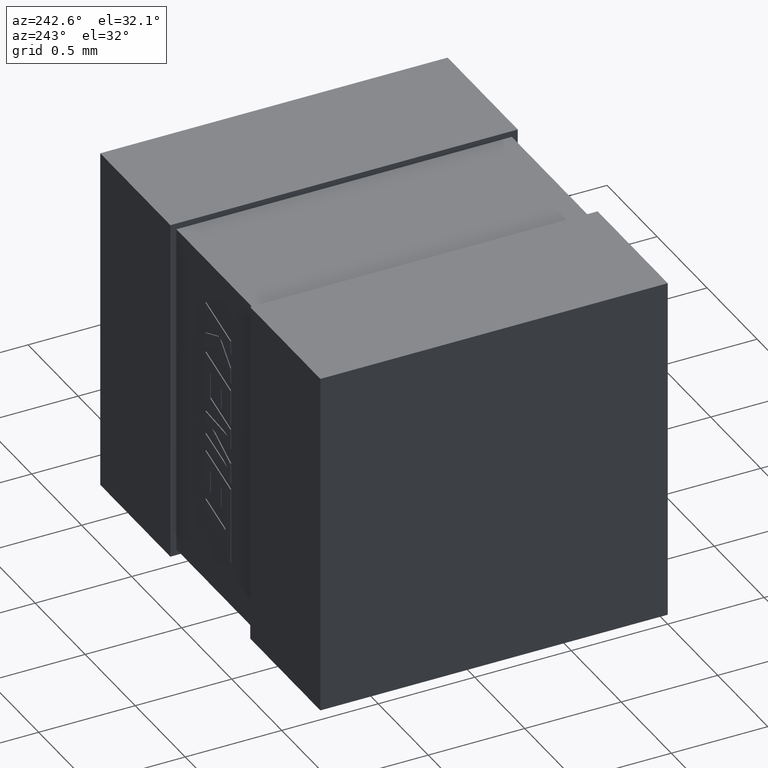
[diagram: clean part render]
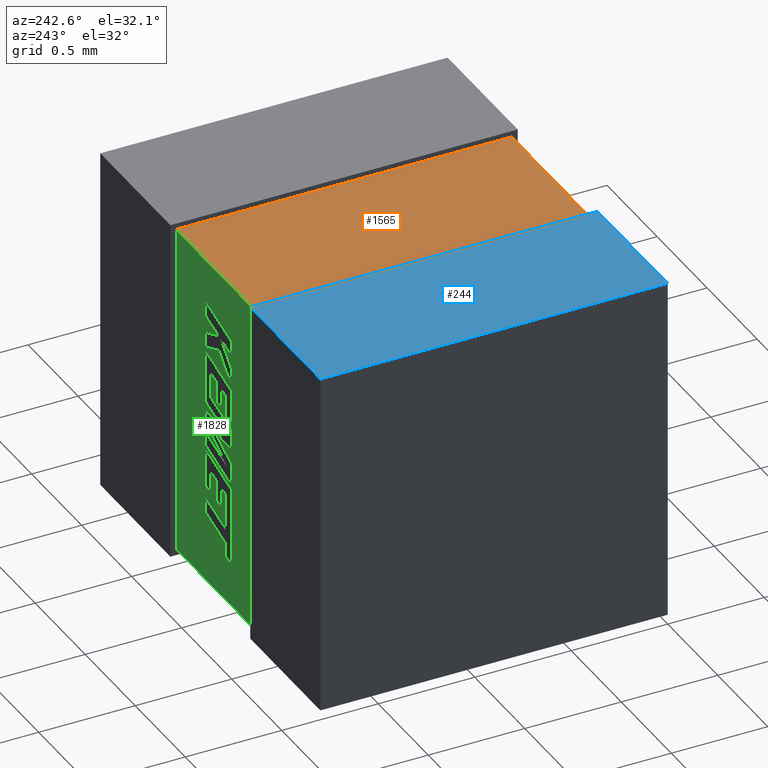
[diagram: same view with three faces highlighted in distinct colors, each labeled with its STEP entity id]
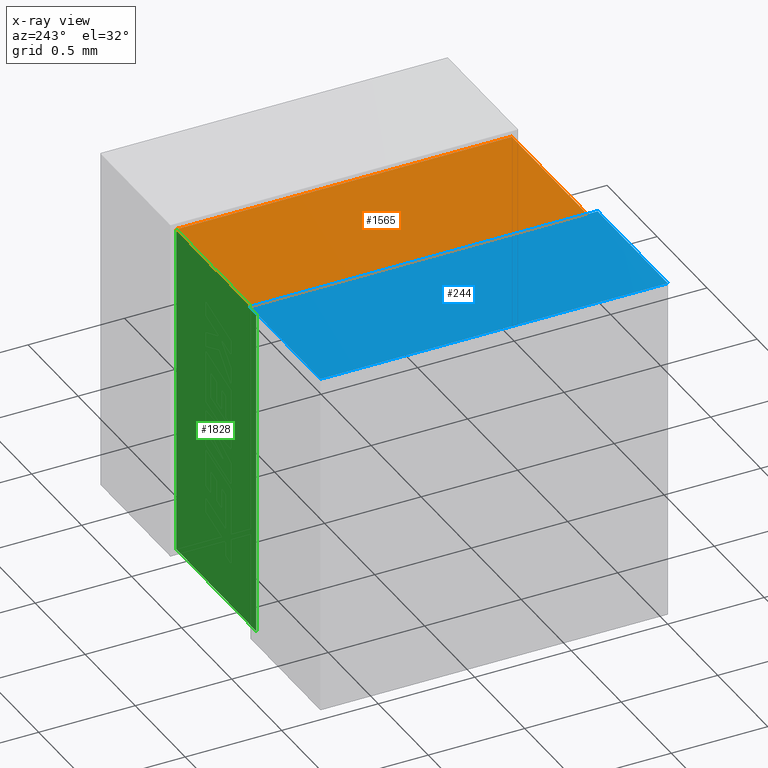
[diagram: x-ray of the same camera — body ghosted, the three highlighted faces saturated]
A machine part, auxiliary view with three faces highlighted in distinct colors.
The next image is the same camera in x-ray (body ghosted, the three faces saturated) — at least one of them is partly hidden behind the body in this view.
Their STEP definitions:

[orange] entity #1565 — the highlighted planar face has unit normal (-0, 0, 1).
#67 = VERTEX_POINT ( 'NONE', #342 ) ;
#77 = LINE ( 'NONE', #1524, #1134 ) ;
#177 = DIRECTION ( 'NONE',  ( 0.0000000000000000000, 1.000000000000000000, 0.0000000000000000000 ) ) ;
#220 = DIRECTION ( 'NONE',  ( -0.0000000000000000000, 0.0000000000000000000, 1.000000000000000000 ) ) ;
#322 = EDGE_CURVE ( 'NONE', #2169, #1281, #1239, .T. ) ;
#342 = CARTESIAN_POINT ( 'NONE',  ( 1.499000000000000300, 0.03103379999999959400, -0.03103380000000002800 ) ) ;
#543 = LINE ( 'NONE', #1466, #2233 ) ;
#584 = CARTESIAN_POINT ( 'NONE',  ( 0.7010000000000062800, 1.768966199999999500, -0.03103379999999982300 ) ) ;
#654 = DIRECTION ( 'NONE',  ( 1.000000000000000000, -5.421010862427523200E-016, 0.0000000000000000000 ) ) ;
#950 = VERTEX_POINT ( 'NONE', #2004 ) ;
#987 = PLANE ( 'NONE',  #1063 ) ;
#1063 = AXIS2_PLACEMENT_3D ( 'NONE', #2134, #220, #1749 ) ;
#1090 = VECTOR ( 'NONE', #1995, 1000.000000000000000 ) ;
#1134 = VECTOR ( 'NONE', #177, 1000.000000000000000 ) ;
#1239 = LINE ( 'NONE', #1976, #1090 ) ;
#1243 = CARTESIAN_POINT ( 'NONE',  ( 0.6999999999999999600, 0.03103380000000002800, -0.03103380000000002800 ) ) ;
#1274 = DIRECTION ( 'NONE',  ( 0.0000000000000000000, -1.000000000000000000, -1.169711246197102500E-016 ) ) ;
#1281 = VERTEX_POINT ( 'NONE', #1484 ) ;
#1307 = ORIENTED_EDGE ( 'NONE', *, *, #1984, .T. ) ;
#1368 = EDGE_LOOP ( 'NONE', ( #1505, #2200, #2322, #1307 ) ) ;
#1466 = CARTESIAN_POINT ( 'NONE',  ( 0.7010000000000062800, 1.768966199999999500, -0.03103379999999982300 ) ) ;
#1484 = CARTESIAN_POINT ( 'NONE',  ( 1.499000000000000100, 1.768966199999999500, -0.03103380000000002800 ) ) ;
#1505 = ORIENTED_EDGE ( 'NONE', *, *, #2193, .T. ) ;
#1524 = CARTESIAN_POINT ( 'NONE',  ( 1.499000000000000100, 0.03103379999999959400, -0.03103380000000002800 ) ) ;
#1565 = ADVANCED_FACE ( 'NONE', ( #2330 ), #987, .T. ) ;
#1569 = LINE ( 'NONE', #1243, #2477 ) ;
#1749 = DIRECTION ( 'NONE',  ( 1.000000000000000000, 0.0000000000000000000, 0.0000000000000000000 ) ) ;
#1976 = CARTESIAN_POINT ( 'NONE',  ( 0.6999999999999999600, 1.768966199999999500, -0.03103380000000002800 ) ) ;
#1984 = EDGE_CURVE ( 'NONE', #2169, #950, #543, .T. ) ;
#1995 = DIRECTION ( 'NONE',  ( 1.000000000000000000, 0.0000000000000000000, 0.0000000000000000000 ) ) ;
#2004 = CARTESIAN_POINT ( 'NONE',  ( 0.7010000000000062800, 0.03103379999999959400, -0.03103380000000002800 ) ) ;
#2134 = CARTESIAN_POINT ( 'NONE',  ( 0.6999999999999999600, 0.0000000000000000000, -0.03103380000000002800 ) ) ;
#2169 = VERTEX_POINT ( 'NONE', #584 ) ;
#2193 = EDGE_CURVE ( 'NONE', #950, #67, #1569, .T. ) ;
#2200 = ORIENTED_EDGE ( 'NONE', *, *, #2504, .T. ) ;
#2233 = VECTOR ( 'NONE', #1274, 1000.000000000000000 ) ;
#2322 = ORIENTED_EDGE ( 'NONE', *, *, #322, .F. ) ;
#2330 = FACE_OUTER_BOUND ( 'NONE', #1368, .T. ) ;
#2477 = VECTOR ( 'NONE', #654, 1000.000000000000000 ) ;
#2504 = EDGE_CURVE ( 'NONE', #67, #1281, #77, .T. ) ;

[blue] entity #244 — the highlighted planar face has unit normal (0, 0, -1).
#22 = VERTEX_POINT ( 'NONE', #736 ) ;
#83 = ORIENTED_EDGE ( 'NONE', *, *, #826, .F. ) ;
#103 = DIRECTION ( 'NONE',  ( -0.0000000000000000000, -1.000000000000000000, -0.0000000000000000000 ) ) ;
#119 = VECTOR ( 'NONE', #2199, 1000.000000000000000 ) ;
#169 = VERTEX_POINT ( 'NONE', #1744 ) ;
#230 = ORIENTED_EDGE ( 'NONE', *, *, #999, .T. ) ;
#241 = VECTOR ( 'NONE', #103, 1000.000000000000000 ) ;
#244 = ADVANCED_FACE ( 'NONE', ( #340 ), #2371, .F. ) ;
#340 = FACE_OUTER_BOUND ( 'NONE', #1252, .T. ) ;
#736 = CARTESIAN_POINT ( 'NONE',  ( 0.0000000000000000000, 0.0000000000000000000, 0.0000000000000000000 ) ) ;
#751 = VERTEX_POINT ( 'NONE', #1577 ) ;
#804 = DIRECTION ( 'NONE',  ( 0.0000000000000000000, 0.0000000000000000000, -1.000000000000000000 ) ) ;
#812 = CARTESIAN_POINT ( 'NONE',  ( 0.0000000000000000000, 1.800000000000000000, 0.0000000000000000000 ) ) ;
#823 = CARTESIAN_POINT ( 'NONE',  ( 0.7010000000000062800, 1.799999999999999800, 4.061078227704261800E-017 ) ) ;
#826 = EDGE_CURVE ( 'NONE', #751, #1927, #2182, .T. ) ;
#876 = CARTESIAN_POINT ( 'NONE',  ( 0.7010000000000062800, 1.799999999999999800, 4.061078227704261800E-017 ) ) ;
#986 = VECTOR ( 'NONE', #1440, 1000.000000000000000 ) ;
#999 = EDGE_CURVE ( 'NONE', #751, #22, #1325, .T. ) ;
#1036 = CARTESIAN_POINT ( 'NONE',  ( 0.0000000000000000000, 0.0000000000000000000, 0.0000000000000000000 ) ) ;
#1229 = DIRECTION ( 'NONE',  ( 1.000000000000000000, 0.0000000000000000000, 0.0000000000000000000 ) ) ;
#1252 = EDGE_LOOP ( 'NONE', ( #2492, #1375, #83, #230 ) ) ;
#1325 = LINE ( 'NONE', #1427, #241 ) ;
#1370 = DIRECTION ( 'NONE',  ( -1.000000000000000000, 0.0000000000000000000, -0.0000000000000000000 ) ) ;
#1375 = ORIENTED_EDGE ( 'NONE', *, *, #1529, .F. ) ;
#1399 = EDGE_CURVE ( 'NONE', #22, #169, #1878, .T. ) ;
#1427 = CARTESIAN_POINT ( 'NONE',  ( 0.0000000000000000000, 1.800000000000000000, 0.0000000000000000000 ) ) ;
#1440 = DIRECTION ( 'NONE',  ( 0.0000000000000000000, -1.000000000000000000, -2.256154570946815900E-017 ) ) ;
#1529 = EDGE_CURVE ( 'NONE', #1927, #169, #2269, .T. ) ;
#1573 = VECTOR ( 'NONE', #1229, 1000.000000000000000 ) ;
#1577 = CARTESIAN_POINT ( 'NONE',  ( 0.0000000000000000000, 1.800000000000000000, 0.0000000000000000000 ) ) ;
#1744 = CARTESIAN_POINT ( 'NONE',  ( 0.7010000000000062800, 2.445532035199876600E-015, 0.0000000000000000000 ) ) ;
#1878 = LINE ( 'NONE', #1036, #1573 ) ;
#1920 = AXIS2_PLACEMENT_3D ( 'NONE', #812, #804, #1370 ) ;
#1927 = VERTEX_POINT ( 'NONE', #823 ) ;
#2182 = LINE ( 'NONE', #2404, #119 ) ;
#2199 = DIRECTION ( 'NONE',  ( 1.000000000000000000, 0.0000000000000000000, 0.0000000000000000000 ) ) ;
#2269 = LINE ( 'NONE', #876, #986 ) ;
#2371 = PLANE ( 'NONE',  #1920 ) ;
#2404 = CARTESIAN_POINT ( 'NONE',  ( 0.0000000000000000000, 1.800000000000000000, 0.0000000000000000000 ) ) ;
#2492 = ORIENTED_EDGE ( 'NONE', *, *, #1399, .T. ) ;

[green] entity #1828 — the highlighted planar face has unit normal (0, -1, 0).
#30 = CARTESIAN_POINT ( 'NONE',  ( 0.7010000000000062800, 1.768966199999999700, -1.768966199999999500 ) ) ;
#34 = DIRECTION ( 'NONE',  ( 5.421010862427523200E-016, -1.000000000000000000, 0.0000000000000000000 ) ) ;
#36 = EDGE_CURVE ( 'NONE', #1281, #881, #2189, .T. ) ;
#137 = LINE ( 'NONE', #2136, #1194 ) ;
#210 = DIRECTION ( 'NONE',  ( -0.0000000000000000000, -1.247691995943576200E-016, 1.000000000000000000 ) ) ;
#293 = FACE_OUTER_BOUND ( 'NONE', #2293, .T. ) ;
#322 = EDGE_CURVE ( 'NONE', #2169, #1281, #1239, .T. ) ;
#345 = ORIENTED_EDGE ( 'NONE', *, *, #768, .T. ) ;
#522 = DIRECTION ( 'NONE',  ( -0.0000000000000000000, -0.0000000000000000000, -1.000000000000000000 ) ) ;
#584 = CARTESIAN_POINT ( 'NONE',  ( 0.7010000000000062800, 1.768966199999999500, -0.03103379999999982300 ) ) ;
#617 = ORIENTED_EDGE ( 'NONE', *, *, #36, .T. ) ;
#748 = PLANE ( 'NONE',  #1839 ) ;
#749 = VERTEX_POINT ( 'NONE', #30 ) ;
#768 = EDGE_CURVE ( 'NONE', #749, #2169, #1266, .T. ) ;
#881 = VERTEX_POINT ( 'NONE', #1060 ) ;
#1001 = CARTESIAN_POINT ( 'NONE',  ( 0.7010000000000062800, 1.768966199999999500, -0.03103379999999982300 ) ) ;
#1060 = CARTESIAN_POINT ( 'NONE',  ( 1.499000000000000100, 1.768966199999999500, -1.768966199999999900 ) ) ;
#1090 = VECTOR ( 'NONE', #1995, 1000.000000000000000 ) ;
#1194 = VECTOR ( 'NONE', #1330, 1000.000000000000000 ) ;
#1239 = LINE ( 'NONE', #1976, #1090 ) ;
#1266 = LINE ( 'NONE', #1001, #2002 ) ;
#1281 = VERTEX_POINT ( 'NONE', #1484 ) ;
#1330 = DIRECTION ( 'NONE',  ( 1.000000000000000000, 0.0000000000000000000, 0.0000000000000000000 ) ) ;
#1484 = CARTESIAN_POINT ( 'NONE',  ( 1.499000000000000100, 1.768966199999999500, -0.03103380000000002800 ) ) ;
#1669 = VECTOR ( 'NONE', #522, 1000.000000000000000 ) ;
#1828 = ADVANCED_FACE ( 'NONE', ( #293 ), #748, .F. ) ;
#1839 = AXIS2_PLACEMENT_3D ( 'NONE', #2355, #34, #1950 ) ;
#1950 = DIRECTION ( 'NONE',  ( 1.000000000000000000, 5.421010862427523200E-016, 0.0000000000000000000 ) ) ;
#1976 = CARTESIAN_POINT ( 'NONE',  ( 0.6999999999999999600, 1.768966199999999500, -0.03103380000000002800 ) ) ;
#1995 = DIRECTION ( 'NONE',  ( 1.000000000000000000, 0.0000000000000000000, 0.0000000000000000000 ) ) ;
#2002 = VECTOR ( 'NONE', #210, 1000.000000000000000 ) ;
#2069 = ORIENTED_EDGE ( 'NONE', *, *, #2439, .F. ) ;
#2136 = CARTESIAN_POINT ( 'NONE',  ( 0.6999999999999999600, 1.768966199999999500, -1.768966199999999900 ) ) ;
#2148 = ORIENTED_EDGE ( 'NONE', *, *, #322, .T. ) ;
#2169 = VERTEX_POINT ( 'NONE', #584 ) ;
#2189 = LINE ( 'NONE', #2298, #1669 ) ;
#2293 = EDGE_LOOP ( 'NONE', ( #617, #2069, #345, #2148 ) ) ;
#2298 = CARTESIAN_POINT ( 'NONE',  ( 1.499000000000000100, 1.768966199999999500, -1.768966199999999900 ) ) ;
#2355 = CARTESIAN_POINT ( 'NONE',  ( 0.7000000000000000700, 1.768966199999999900, -1.800000000000000000 ) ) ;
#2439 = EDGE_CURVE ( 'NONE', #749, #881, #137, .T. ) ;